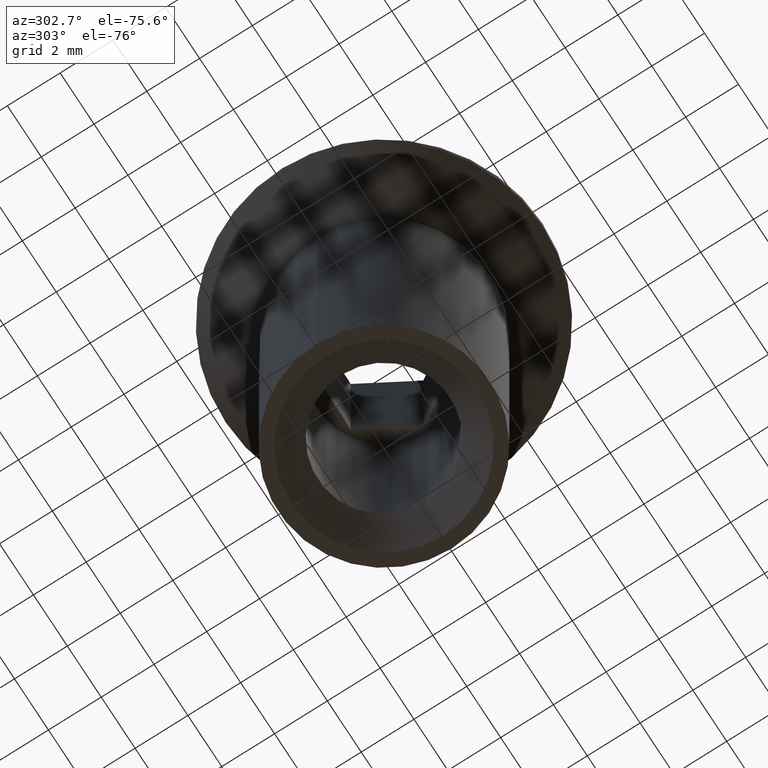
[diagram: clean part render]
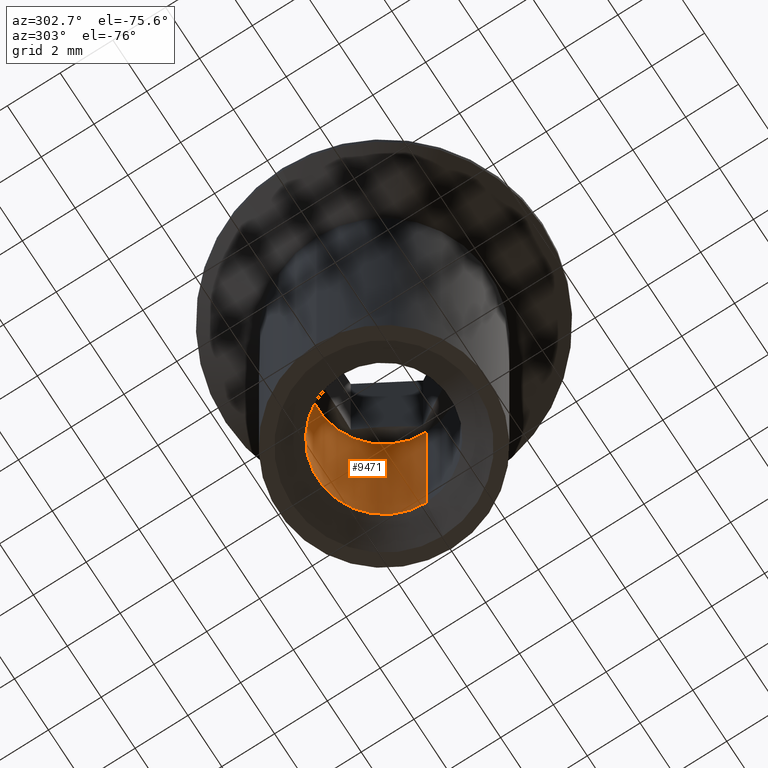
[diagram: same view with one face highlighted and labeled with its STEP entity id]
A machine part, auxiliary view. The second image highlights one B-rep face of the part: STEP entity #9471.
In plain terms, the highlighted cylindrical surface (partial cylindrical patch) has radius 2.5 mm, axis along (-0, -0, -1).
Its self-contained STEP definition (entity closure, byte-faithful):
#260 = DIRECTION ( 'NONE',  ( -0.0000000000000000000, -0.0000000000000000000, -1.000000000000000000 ) ) ;
#355 = ORIENTED_EDGE ( 'NONE', *, *, #7921, .T. ) ;
#1125 = VERTEX_POINT ( 'NONE', #12722 ) ;
#2272 = CIRCLE ( 'NONE', #3320, 2.499999999999996900 ) ;
#2388 = ORIENTED_EDGE ( 'NONE', *, *, #13424, .T. ) ;
#2583 = EDGE_CURVE ( 'NONE', #1125, #4653, #2272, .T. ) ;
#3320 = AXIS2_PLACEMENT_3D ( 'NONE', #5203, #260, #13807 ) ;
#3406 = DIRECTION ( 'NONE',  ( -1.000000000000000000, 0.0000000000000000000, 0.0000000000000000000 ) ) ;
#4495 = CARTESIAN_POINT ( 'NONE',  ( 0.0000000000000000000, 0.0000000000000000000, -8.000000000000000000 ) ) ;
#4653 = VERTEX_POINT ( 'NONE', #9284 ) ;
#4844 = VECTOR ( 'NONE', #15077, 1000.000000000000000 ) ;
#5203 = CARTESIAN_POINT ( 'NONE',  ( 0.0000000000000000000, 0.0000000000000000000, 2.000000000000000000 ) ) ;
#5257 = LINE ( 'NONE', #6356, #11797 ) ;
#6011 = DIRECTION ( 'NONE',  ( -0.0000000000000000000, -0.0000000000000000000, -1.000000000000000000 ) ) ;
#6356 = CARTESIAN_POINT ( 'NONE',  ( -2.499999999999997800, 0.0000000000000000000, -8.000000000000000000 ) ) ;
#6393 = CIRCLE ( 'NONE', #11700, 2.499999999999997800 ) ;
#7278 = CARTESIAN_POINT ( 'NONE',  ( -2.499999999999997800, 0.0000000000000000000, -6.999999999999996400 ) ) ;
#7532 = DIRECTION ( 'NONE',  ( -0.0000000000000000000, -0.0000000000000000000, -1.000000000000000000 ) ) ;
#7921 = EDGE_CURVE ( 'NONE', #1125, #9136, #5257, .T. ) ;
#8890 = LINE ( 'NONE', #10083, #4844 ) ;
#9136 = VERTEX_POINT ( 'NONE', #7278 ) ;
#9284 = CARTESIAN_POINT ( 'NONE',  ( 2.499999999999996900, 3.061616997868379200E-016, 2.000000000000000000 ) ) ;
#9437 = CARTESIAN_POINT ( 'NONE',  ( 0.0000000000000000000, 0.0000000000000000000, -6.999999999999996400 ) ) ;
#9442 = CYLINDRICAL_SURFACE ( 'NONE', #10037, 2.499999999999997800 ) ;
#9471 = ADVANCED_FACE ( 'NONE', ( #13483 ), #9442, .F. ) ;
#10037 = AXIS2_PLACEMENT_3D ( 'NONE', #4495, #6011, #15679 ) ;
#10083 = CARTESIAN_POINT ( 'NONE',  ( 2.499999999999997800, 3.061616997868380700E-016, -8.000000000000000000 ) ) ;
#11005 = CARTESIAN_POINT ( 'NONE',  ( 2.499999999999997800, 3.061616997868380700E-016, -6.999999999999996400 ) ) ;
#11675 = ORIENTED_EDGE ( 'NONE', *, *, #2583, .F. ) ;
#11700 = AXIS2_PLACEMENT_3D ( 'NONE', #9437, #13999, #3406 ) ;
#11797 = VECTOR ( 'NONE', #7532, 1000.000000000000000 ) ;
#12722 = CARTESIAN_POINT ( 'NONE',  ( -2.499999999999996900, 0.0000000000000000000, 2.000000000000000000 ) ) ;
#13003 = EDGE_LOOP ( 'NONE', ( #15122, #11675, #355, #2388 ) ) ;
#13192 = VERTEX_POINT ( 'NONE', #11005 ) ;
#13380 = EDGE_CURVE ( 'NONE', #4653, #13192, #8890, .T. ) ;
#13424 = EDGE_CURVE ( 'NONE', #9136, #13192, #6393, .T. ) ;
#13483 = FACE_OUTER_BOUND ( 'NONE', #13003, .T. ) ;
#13807 = DIRECTION ( 'NONE',  ( -1.000000000000000000, 0.0000000000000000000, 0.0000000000000000000 ) ) ;
#13999 = DIRECTION ( 'NONE',  ( 0.0000000000000000000, 0.0000000000000000000, -1.000000000000000000 ) ) ;
#15077 = DIRECTION ( 'NONE',  ( -0.0000000000000000000, -0.0000000000000000000, -1.000000000000000000 ) ) ;
#15122 = ORIENTED_EDGE ( 'NONE', *, *, #13380, .F. ) ;
#15679 = DIRECTION ( 'NONE',  ( -1.000000000000000000, 0.0000000000000000000, 0.0000000000000000000 ) ) ;